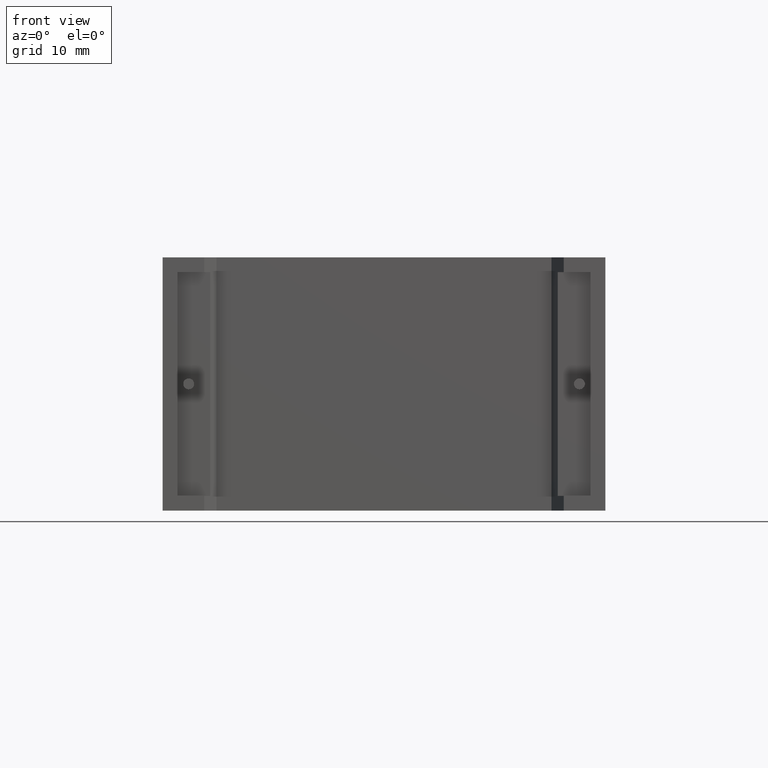
[diagram: clean part render]
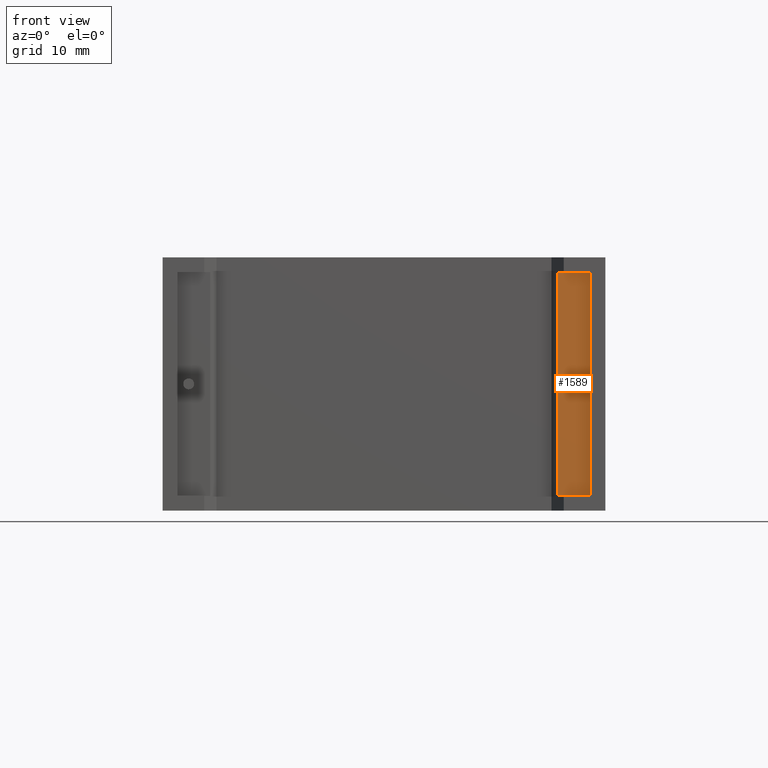
[diagram: same view with one face highlighted and labeled with its STEP entity id]
A machine part, front view. The second image highlights one B-rep face of the part: STEP entity #1589.
In plain terms, the highlighted planar face has unit normal (0, -1, 0).
Its self-contained STEP definition (entity closure, byte-faithful):
#18 = VECTOR ( 'NONE', #1524, 1000.000000000000000 ) ;
#44 = EDGE_CURVE ( 'NONE', #532, #430, #2128, .T. ) ;
#64 = EDGE_CURVE ( 'NONE', #1208, #1162, #1228, .T. ) ;
#171 = CIRCLE ( 'NONE', #1169, 0.5249999999999994671 ) ;
#204 = ORIENTED_EDGE ( 'NONE', *, *, #1139, .T. ) ;
#351 = EDGE_CURVE ( 'NONE', #1162, #1325, #2807, .T. ) ;
#352 = DIRECTION ( 'NONE',  ( 0.000000000000000000, -0.000000000000000000, -1.000000000000000000 ) ) ;
#358 = ORIENTED_EDGE ( 'NONE', *, *, #1896, .F. ) ;
#430 = VERTEX_POINT ( 'NONE', #2679 ) ;
#432 = ORIENTED_EDGE ( 'NONE', *, *, #738, .T. ) ;
#532 = VERTEX_POINT ( 'NONE', #1763 ) ;
#538 = ORIENTED_EDGE ( 'NONE', *, *, #44, .F. ) ;
#670 = CARTESIAN_POINT ( 'NONE',  ( 37.92049779896612449, 0.7500000000000000000, 1.416666525000000121 ) ) ;
#701 = CARTESIAN_POINT ( 'NONE',  ( 1.416666525000000121, 0.7500000000000000000, 1.416666525000000121 ) ) ;
#713 = ORIENTED_EDGE ( 'NONE', *, *, #64, .T. ) ;
#725 = DIRECTION ( 'NONE',  ( 0.000000000000000000, 0.000000000000000000, -1.000000000000000000 ) ) ;
#737 = ORIENTED_EDGE ( 'NONE', *, *, #351, .T. ) ;
#738 = EDGE_CURVE ( 'NONE', #2201, #1208, #3048, .T. ) ;
#741 = DIRECTION ( 'NONE',  ( -1.000000000000000000, 0.000000000000000000, 0.000000000000000000 ) ) ;
#753 = CARTESIAN_POINT ( 'NONE',  ( 40.00000000000000000, 0.7499999999999997780, 12.15000000000000036 ) ) ;
#800 = DIRECTION ( 'NONE',  ( 0.000000000000000000, 0.000000000000000000, -1.000000000000000000 ) ) ;
#823 = FACE_BOUND ( 'NONE', #2125, .T. ) ;
#950 = DIRECTION ( 'NONE',  ( 0.000000000000000000, -1.000000000000000000, 0.000000000000000000 ) ) ;
#993 = EDGE_LOOP ( 'NONE', ( #432, #713, #737, #204 ) ) ;
#1069 = LINE ( 'NONE', #2248, #18 ) ;
#1124 = CARTESIAN_POINT ( 'NONE',  ( 37.92049779896612449, 0.7500000000000000000, 22.88333347500000414 ) ) ;
#1139 = EDGE_CURVE ( 'NONE', #1325, #2201, #1069, .T. ) ;
#1162 = VERTEX_POINT ( 'NONE', #670 ) ;
#1169 = AXIS2_PLACEMENT_3D ( 'NONE', #2399, #1909, #800 ) ;
#1208 = VERTEX_POINT ( 'NONE', #1124 ) ;
#1213 = CARTESIAN_POINT ( 'NONE',  ( 37.92049779896612449, 0.7500000000000000000, 0.000000000000000000 ) ) ;
#1228 = LINE ( 'NONE', #1213, #1355 ) ;
#1271 = PLANE ( 'NONE',  #1504 ) ;
#1301 = VECTOR ( 'NONE', #741, 1000.000000000000000 ) ;
#1325 = VERTEX_POINT ( 'NONE', #2674 ) ;
#1355 = VECTOR ( 'NONE', #2157, 1000.000000000000000 ) ;
#1504 = AXIS2_PLACEMENT_3D ( 'NONE', #2975, #1811, #352 ) ;
#1524 = DIRECTION ( 'NONE',  ( 3.232403949839650024E-16, 0.000000000000000000, 1.000000000000000000 ) ) ;
#1589 = ADVANCED_FACE ( 'NONE', ( #823, #2166 ), #1271, .T. ) ;
#1763 = CARTESIAN_POINT ( 'NONE',  ( 40.00000000000000000, 0.7499999999999997780, 12.67500000000000071 ) ) ;
#1811 = DIRECTION ( 'NONE',  ( 0.000000000000000000, -1.000000000000000000, 0.000000000000000000 ) ) ;
#1830 = CARTESIAN_POINT ( 'NONE',  ( 41.08333347500000343, 0.7500000000000000000, 22.88333347500000414 ) ) ;
#1896 = EDGE_CURVE ( 'NONE', #430, #532, #171, .T. ) ;
#1909 = DIRECTION ( 'NONE',  ( 0.000000000000000000, -1.000000000000000000, 0.000000000000000000 ) ) ;
#1913 = CARTESIAN_POINT ( 'NONE',  ( 41.08333347500000343, 0.7500000000000000000, 22.88333347500000414 ) ) ;
#2125 = EDGE_LOOP ( 'NONE', ( #538, #358 ) ) ;
#2128 = CIRCLE ( 'NONE', #2328, 0.5249999999999994671 ) ;
#2157 = DIRECTION ( 'NONE',  ( 0.000000000000000000, 0.000000000000000000, -1.000000000000000000 ) ) ;
#2166 = FACE_OUTER_BOUND ( 'NONE', #993, .T. ) ;
#2201 = VERTEX_POINT ( 'NONE', #1830 ) ;
#2248 = CARTESIAN_POINT ( 'NONE',  ( 41.08333347499999633, 0.7500000000000000000, 1.416666525000000121 ) ) ;
#2328 = AXIS2_PLACEMENT_3D ( 'NONE', #753, #950, #725 ) ;
#2370 = VECTOR ( 'NONE', #2540, 1000.000000000000000 ) ;
#2399 = CARTESIAN_POINT ( 'NONE',  ( 40.00000000000000000, 0.7499999999999997780, 12.15000000000000036 ) ) ;
#2540 = DIRECTION ( 'NONE',  ( 1.000000000000000000, 0.000000000000000000, 0.000000000000000000 ) ) ;
#2674 = CARTESIAN_POINT ( 'NONE',  ( 41.08333347499999633, 0.7500000000000000000, 1.416666525000000121 ) ) ;
#2679 = CARTESIAN_POINT ( 'NONE',  ( 40.00000000000000000, 0.7499999999999997780, 11.62500000000000178 ) ) ;
#2807 = LINE ( 'NONE', #701, #2370 ) ;
#2975 = CARTESIAN_POINT ( 'NONE',  ( 0.000000000000000000, 0.7500000000000000000, 0.000000000000000000 ) ) ;
#3048 = LINE ( 'NONE', #1913, #1301 ) ;